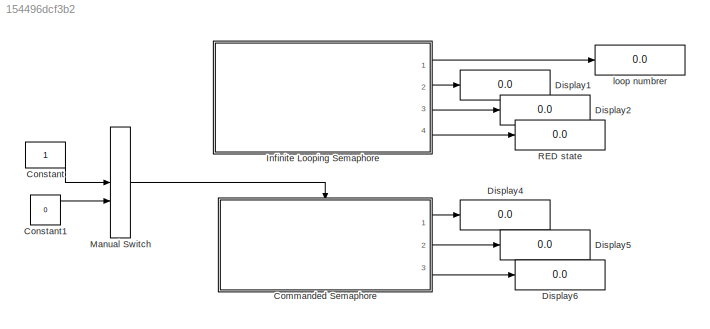
MODEL slx_154496dcf3b2
KIND model
CONFIG AbsTol = auto
CONFIG EnableMultiTasking = off
CONFIG FixedStep = auto
CONFIG MaxStep = auto
CONFIG MinStep = auto
CONFIG RelTol = 1e-3
CONFIG SampleTimeConstraint = Unconstrained
CONFIG Solver = FixedStepAuto
CONFIG SolverName = FixedStepAuto
CONFIG StartTime = 0.0
CONFIG StopTime = inf
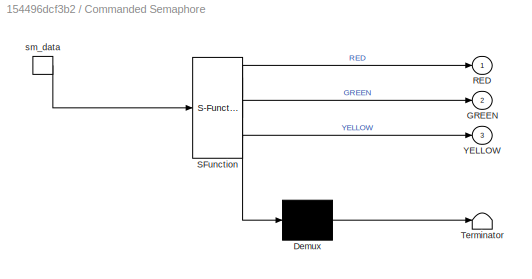
BLOCK [SubSystem] Commanded Semaphore
  ErrorFcn = Stateflow.Translate.translate
  PermitHierarchicalResolution = ExplicitOnly
  Ports = [0, 3, 0, 1]
  RequestExecContextInheritance = off
  SFBlockType = Chart
  TreatAsAtomicUnit = on
  Variant = off
BLOCK [Demux] Commanded Semaphore/ Demux 
  Outputs = 1
  Ports = [1, 1]
BLOCK [Outport] Commanded Semaphore/ GREEN
  IconDisplay = Port number
  Port = 2
BLOCK [Outport] Commanded Semaphore/ RED
  IconDisplay = Port number
BLOCK [S-Function] Commanded Semaphore/ SFunction 
  EnableBusSupport = on
  FunctionName = sf_sfun
  PortCounts = [1 4]
  Ports = [1, 4]
  SFcnIsStateOwnerBlock = off
  SFunctionDeploymentMode = off
  Tag = Stateflow S-Function learnFSM 3
BLOCK [Terminator] Commanded Semaphore/ Terminator 
BLOCK [Outport] Commanded Semaphore/ YELLOW
  IconDisplay = Port number
  Port = 3
BLOCK [TriggerPort] Commanded Semaphore/sm_data
  Ports = [0, 1]
  ShowOutputPort = on
  StatesWhenEnabling = held
  TriggerType = either
  VariantControl = Variant
BLOCK [Constant] Constant
BLOCK [Constant] Constant1
  Value = 0
BLOCK [Display] Display1
  Decimation = 1
  Ports = [1]
BLOCK [Display] Display2
  Decimation = 1
  Ports = [1]
BLOCK [Display] Display4
  Decimation = 1
  Ports = [1]
BLOCK [Display] Display5
  Decimation = 1
  Ports = [1]
BLOCK [Display] Display6
  Decimation = 1
  Ports = [1]
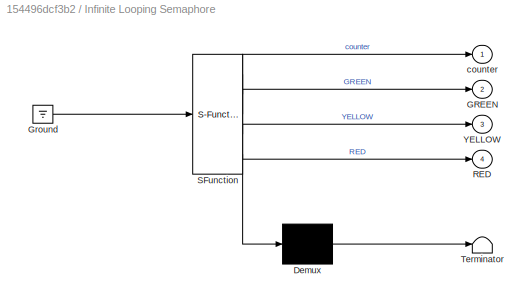
BLOCK [SubSystem] Infinite Looping Semaphore
  ErrorFcn = Stateflow.Translate.translate
  PermitHierarchicalResolution = ExplicitOnly
  Ports = [0, 4]
  RequestExecContextInheritance = off
  SFBlockType = Chart
  TreatAsAtomicUnit = on
  Variant = off
BLOCK [Demux] Infinite Looping Semaphore/ Demux 
  Outputs = 1
  Ports = [1, 1]
BLOCK [Outport] Infinite Looping Semaphore/ GREEN
  IconDisplay = Port number
  Port = 2
BLOCK [Ground] Infinite Looping Semaphore/ Ground 
BLOCK [Outport] Infinite Looping Semaphore/ RED
  IconDisplay = Port number
  Port = 4
BLOCK [S-Function] Infinite Looping Semaphore/ SFunction 
  EnableBusSupport = on
  FunctionName = sf_sfun
  PortCounts = [1 5]
  Ports = [1, 5]
  SFcnIsStateOwnerBlock = off
  SFunctionDeploymentMode = off
  Tag = Stateflow S-Function learnFSM 1
BLOCK [Terminator] Infinite Looping Semaphore/ Terminator 
BLOCK [Outport] Infinite Looping Semaphore/ YELLOW
  IconDisplay = Port number
  Port = 3
BLOCK [Outport] Infinite Looping Semaphore/counter
  IconDisplay = Port number
BLOCK [ManualSwitch] Manual Switch
BLOCK [Display] RED state
  Decimation = 1
  Ports = [1]
BLOCK [Display] loop numbrer
  Decimation = 1
  Ports = [1]
LINE Commanded Semaphore:1 -> Display4:1
LINE Commanded Semaphore:2 -> Display5:1
LINE Commanded Semaphore:3 -> Display6:1
LINE Constant1:1 -> Manual Switch:2
LINE Constant:1 -> Manual Switch:1
LINE Infinite Looping Semaphore:1 -> loop numbrer:1
LINE Infinite Looping Semaphore:2 -> Display1:1
LINE Infinite Looping Semaphore:3 -> Display2:1
LINE Infinite Looping Semaphore:4 -> RED state:1
LINE Manual Switch:1 -> Commanded Semaphore:trigger
CHART Infinite Looping Semaphore states=3 transitions=4
  STATE_LABEL 'GREEN'
  STATE_LABEL 'RED'
  STATE_LABEL 'YELLOW'
CHART Commanded Semaphore states=3 transitions=4
  STATE_LABEL 'RED'
  STATE_LABEL 'YELLOW'
  STATE_LABEL 'GREEN'
